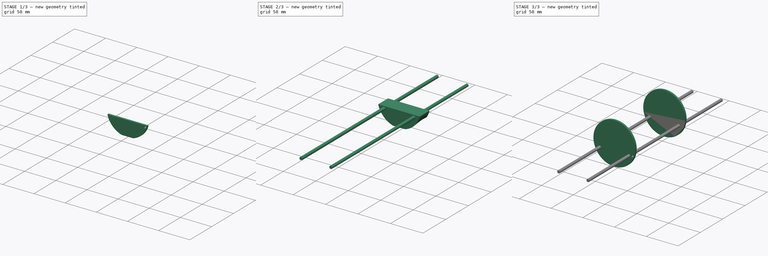
[diagram: build sequence overview — one tinted view per stage of 3, left to right]
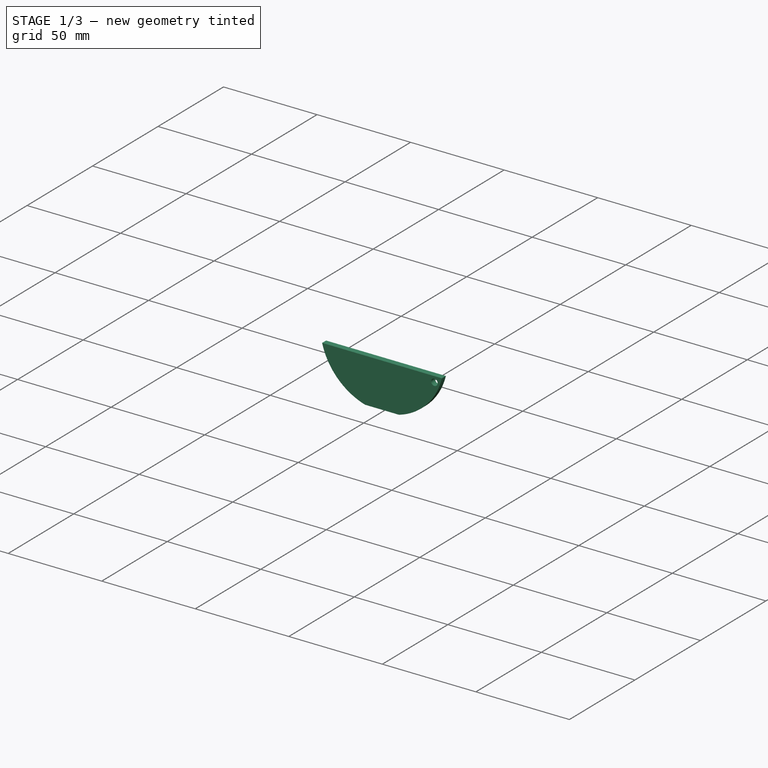
[diagram: stage 1 of 3 — iso view after this stage's code; geometry added in this stage tinted green]
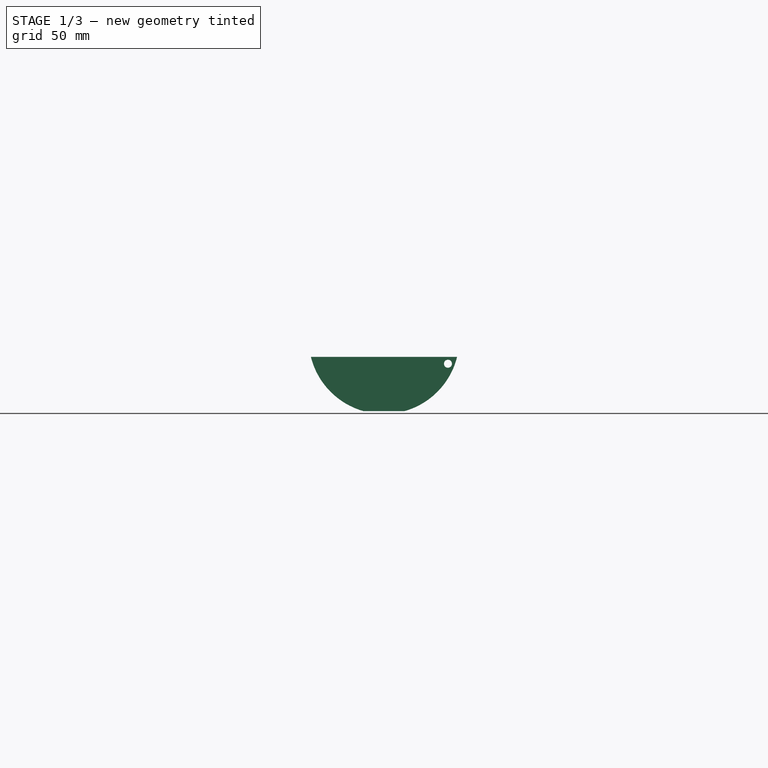
[diagram: stage 1 of 3 — front view after this stage's code; geometry added in this stage tinted green]
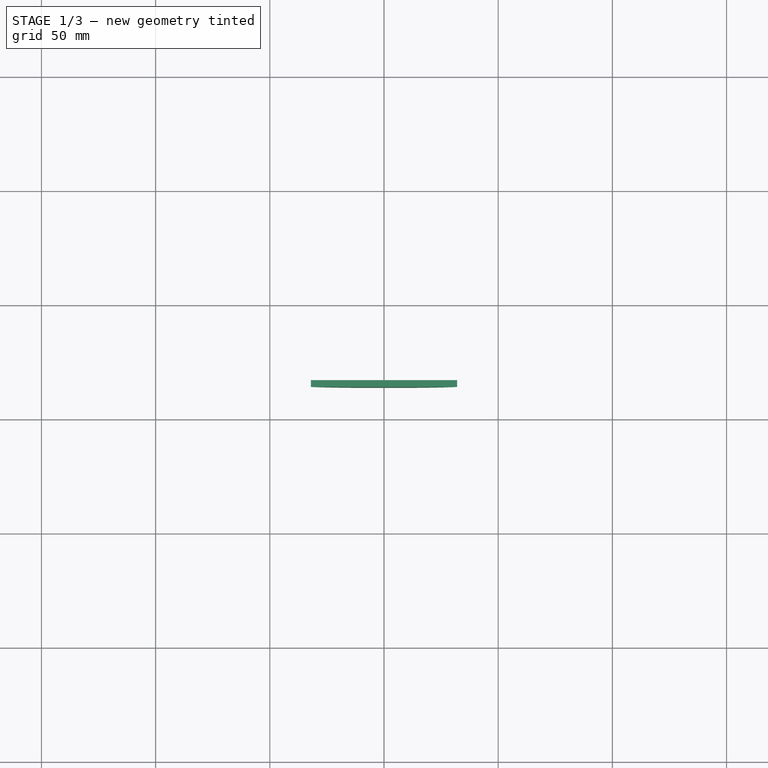
[diagram: stage 1 of 3 — top view after this stage's code; geometry added in this stage tinted green]
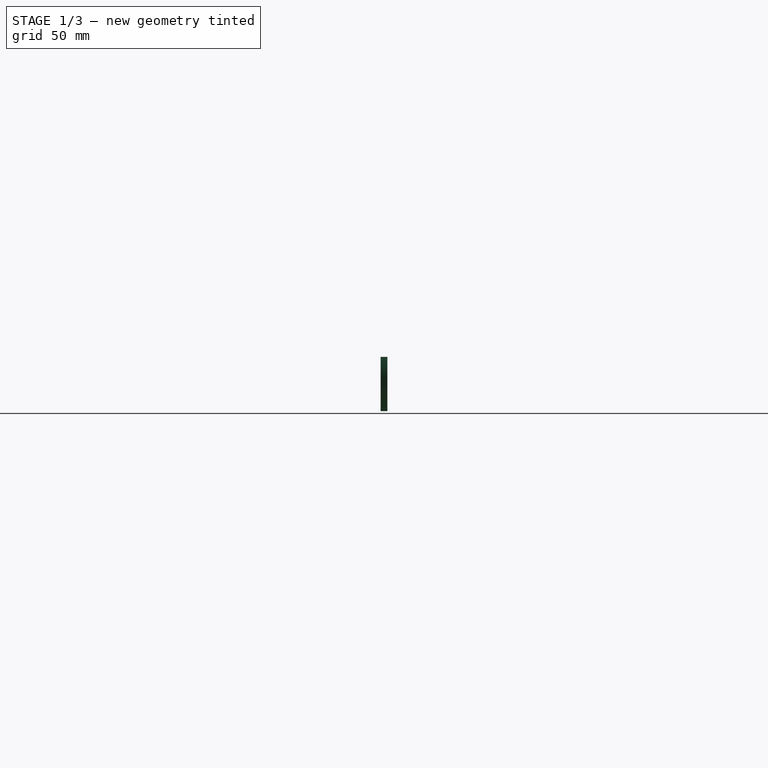
[diagram: stage 1 of 3 — right view after this stage's code; geometry added in this stage tinted green]
FCSTD DOCUMENT  (FreeCAD 0.19R24276 (Git))
Label: Corte_piezas3
License: Creative Commons Attribution-ShareAlike
LicenseURL: http://creativecommons.org/licenses/by-sa/4.0/
objects: Sketcher::SketchObject×8, Part::Extrusion×6, PartDesign::SubShapeBinder×4, App::Part×3, Spreadsheet::Sheet×1, Part::Loft×1
note: 19 computed .brp shape members not serialized (recipe doc carries the construction recipe); baked Part::Feature solids carry a one-line shape summary decoded from their .brp

FEATURE [Spreadsheet::Sheet] Spreadsheet  label="Datos"
  cells = A1=Diámetro pila; B1(DiametroPila)=18; A2=Tolerancia; B2(tolerancia)=0.4; A3=Largo Pila; B3(largoPila)=65; A4=Separacion; B4(separacion)=1; A5=Grosor tapa; B5(grosortapa)=3; A6=Largo Bote; B6(LargoBote)=115; A7= Rosca pasante Diámetro; B7(roscaPasante4)=4
FEATURE [Sketcher::SketchObject] Sketch  label="habitaculo_pila_antena"
  FullyConstrained = true
  MapMode = 5
  Placement = pos=(0,0,0) rot=(1,0,0;1.5708rad)
  Support = -> [XZ_Plane]
  expr: Constraints[15] = <<Datos>>.DiametroPila
  expr: Constraints[2] = <<Datos>>.DiametroPila + <<Datos>>.tolerancia
  sketch-geometry (10):
    g0: Circle CenterX=0 CenterY=0 CenterZ=0 NormalX=0 NormalY=0 NormalZ=1 AngleXU=0 Radius=33
    g1: LineSegment StartX=-9 StartY=-31.749 StartZ=0 EndX=9 EndY=-31.749 EndZ=0
    g2: LineSegment StartX=-32.0156 StartY=-8 StartZ=0 EndX=32.0156 EndY=-8 EndZ=0
    g3: ArcOfCircle CenterX=-9 CenterY=-20.249 CenterZ=0 NormalX=0 NormalY=0 NormalZ=1 AngleXU=0 Radius=9.2 StartAngle=0.208894 EndAngle=2.44113
    g4: ArcOfCircle CenterX=9 CenterY=-20.249 CenterZ=0 NormalX=0 NormalY=0 NormalZ=1 AngleXU=0 Radius=9.2 StartAngle=3.35049 EndAngle=9.21588
    g5: Circle CenterX=28 CenterY=-11 CenterZ=0 NormalX=0 NormalY=0 NormalZ=1 AngleXU=0 Radius=1.75
    g6: ArcOfCircle CenterX=0 CenterY=0 CenterZ=0 NormalX=0 NormalY=0 NormalZ=1 AngleXU=0 Radius=33 StartAngle=3.38646 EndAngle=4.43616
    g7: ArcOfCircle CenterX=0 CenterY=0 CenterZ=0 NormalX=0 NormalY=0 NormalZ=1 AngleXU=0 Radius=33 StartAngle=4.98862 EndAngle=6.03832
    g8: ArcOfCircle CenterX=-20.0156 CenterY=-14.7 CenterZ=0 NormalX=0 NormalY=0 NormalZ=1 AngleXU=0 Radius=4 StartAngle=0.0954034 EndAngle=5.25451
    g9: ArcOfCircle CenterX=-9 CenterY=-20.249 CenterZ=0 NormalX=0 NormalY=0 NormalZ=1 AngleXU=0 Radius=9.2 StartAngle=2.90878 EndAngle=6.07429
  constraints (31):
    c: Diameter(g0) = 66
    c: Horizontal(g1)
    c: Diameter(g3) = 18.4
    c: Equal(g3,g4)
    c: Coincident(g4,g9)
    c: Coincident(g4,g3)
    c: Coincident(g0,g-1)
    c: Diameter(g5) = 3.5
    c: Horizontal(g2)
    c: Vertical(g1,g4)
    c: Coincident(g6,g-1)
    c: Coincident(g6,g1)
    c: Coincident(g7,g6)
    c: Coincident(g7,g1)
    c: Symmetric(g4,g3,g-2)
    c: DistanceX(g3,g4) = 18
    c: PointOnObject(g1,g0)
    c: DistanceY(g1,g3) = 11.5
    c: DistanceY(g5,g2) = 3
    c: DistanceX(g6,g5) = 28
    c: DistanceY(g2,g6) = 8
    c: PointOnObject(g6,g0)
    c: Coincident(g2,g6)
    c: Coincident(g7,g2)
    c: DistanceX(g8,g2) = -12
    c: DistanceY(g8,g2) = 6.7
    c: Equal(g3,g9)
    c: Coincident(g3,g8)
    c: Coincident(g9,g8)
    c: Coincident(g3,g9)
    c: Radius(g8) = 4
FEATURE [Part::Extrusion] Extrude  label="Habitaculo_Pilas"
  Base = -> Sketch
  Dir = (0,-1,-2e-16)
  DirMode = 2
  FaceMakerClass = Part::FaceMakerBullseye
  LengthFwd = 66
  LengthRev = 0
  Solid = true
  Symmetric = true
  expr: LengthFwd = <<Datos>>.largoPila + <<Datos>>.separacion
FEATURE [PartDesign::SubShapeBinder] Binder  label="ParaLaTapaPilasSB"
  BindMode = 0
  ClaimChildren = false
  Context = -> Part [Binder.]
  Fuse = false
  MakeFace = true
  PartialLoad = false
  Relative = true
  Support = -> [Extrude[Face11]]
  _Version = 2
FEATURE [Sketcher::SketchObject] Sketch001  label="TapaPilasSK"
  ExternalGeometry = -> [Binder]
  FullyConstrained = true
  MapMode = 5
  Placement = pos=(-3e-16,-33,-1.19e-14) rot=(1,0,0;1.5708rad)
  Support = -> [Binder]
  sketch-geometry (5):
    g0: ArcOfCircle CenterX=5e-16 CenterY=3.1e-15 CenterZ=0 NormalX=0 NormalY=0 NormalZ=1 AngleXU=0 Radius=33 StartAngle=4.98862 EndAngle=6.03832
    g1: ArcOfCircle CenterX=5e-16 CenterY=3.1e-15 CenterZ=0 NormalX=0 NormalY=0 NormalZ=1 AngleXU=0 Radius=33 StartAngle=3.38646 EndAngle=4.43616
    g2: LineSegment StartX=-32.0156 StartY=-8 StartZ=0 EndX=32.0156 EndY=-8 EndZ=0
    g3: LineSegment StartX=9 StartY=-31.749 StartZ=0 EndX=-9 EndY=-31.749 EndZ=0
    g4: Circle CenterX=28 CenterY=-11 CenterZ=0 NormalX=0 NormalY=0 NormalZ=1 AngleXU=0 Radius=1.75
  constraints (11):
    c: Coincident(g0,g-3)
    c: Coincident(g0,g-3)
    c: Coincident(g1,g0)
    c: Coincident(g1,g-4)
    c: Coincident(g1,g-4)
    c: Coincident(g2,g1)
    c: Coincident(g2,g0)
    c: Coincident(g3,g0)
    c: Coincident(g3,g1)
    c: Coincident(g4,g-5)
    c: Equal(g-5,g4)
FEATURE [Part::Extrusion] Extrude002  label="TapaPilas"
  Base = -> Sketch001
  Dir = (0,-1,-2e-16)
  DirMode = 2
  FaceMakerClass = Part::FaceMakerBullseye
  LengthFwd = 3
  LengthRev = 0
  Solid = true
  Symmetric = false
  expr: LengthFwd = <<Datos>>.grosortapa
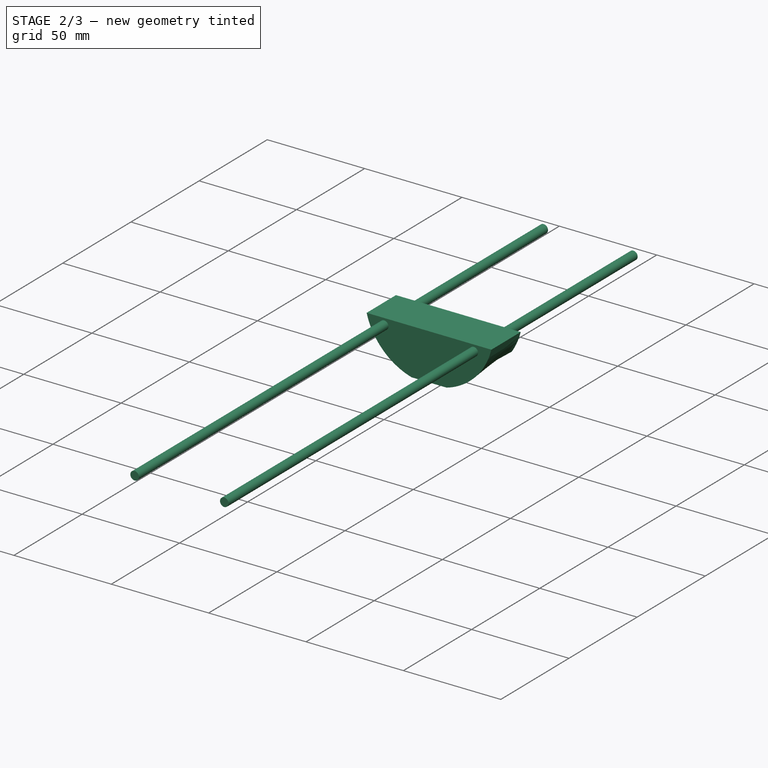
[diagram: stage 2 of 3 — iso view after this stage's code; geometry added in this stage tinted green]
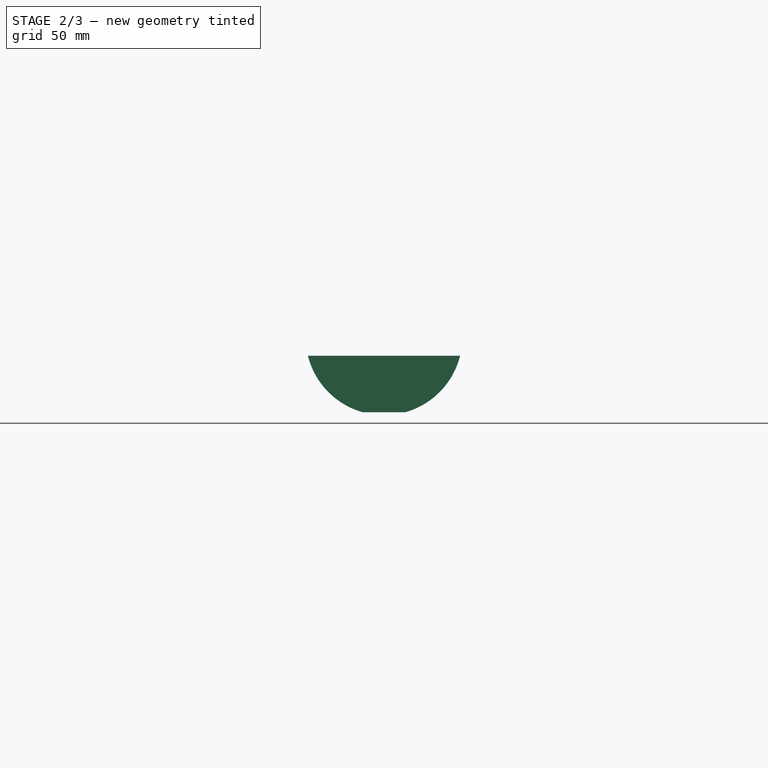
[diagram: stage 2 of 3 — front view after this stage's code; geometry added in this stage tinted green]
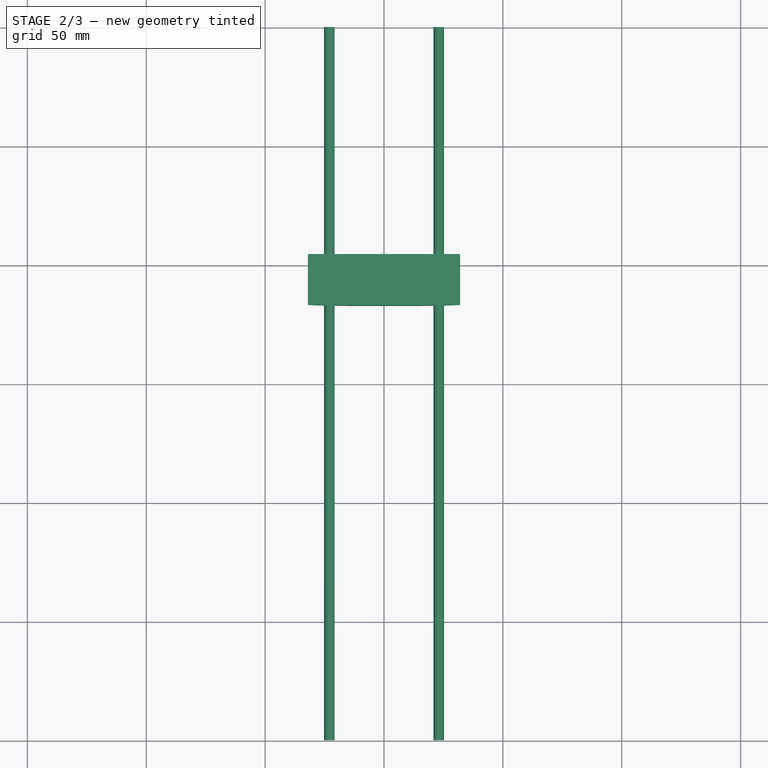
[diagram: stage 2 of 3 — top view after this stage's code; geometry added in this stage tinted green]
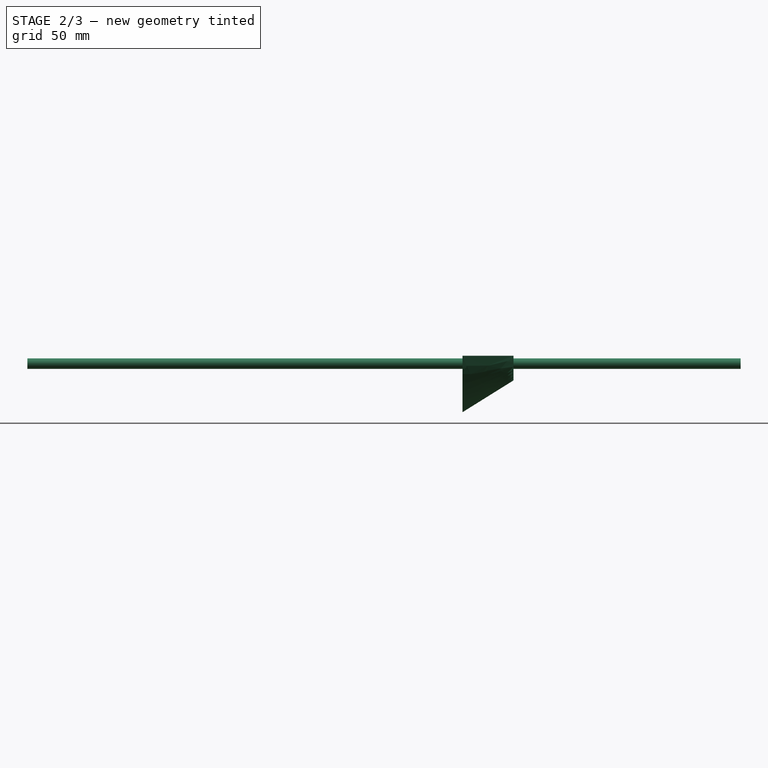
[diagram: stage 2 of 3 — right view after this stage's code; geometry added in this stage tinted green]
FEATURE [App::Part] Part  label="Pilas"
  Group = -> [Sketch,Extrude,Binder,Sketch001,Extrude002]
  Origin = -> Origin
FEATURE [PartDesign::SubShapeBinder] Binder001  label="LateralA_SB"
  BindMode = 0
  ClaimChildren = false
  Context = -> Part001 [Binder001.]
  Fuse = false
  MakeFace = true
  PartialLoad = false
  Relative = true
  Support = -> [Part[Extrude002.Face7]]
  _Version = 2
FEATURE [Sketcher::SketchObject] Sketch002  label="LateralA_SK"
  ExternalGeometry = -> [Binder001]
  FullyConstrained = true
  MapMode = 5
  Placement = pos=(-1e-16,-36,-1.21e-14) rot=(1,0,0;1.5708rad)
  Support = -> [Binder001]
  sketch-geometry (5):
    g0: LineSegment StartX=-32.0156 StartY=-8 StartZ=0 EndX=32.0156 EndY=-8 EndZ=0
    g1: LineSegment StartX=-29.3939 StartY=-15 StartZ=0 EndX=29.3939 EndY=-15 EndZ=0
    g2: ArcOfCircle CenterX=0 CenterY=0 CenterZ=0 NormalX=0 NormalY=0 NormalZ=1 AngleXU=0 Radius=33 StartAngle=5.81132 EndAngle=6.03832
    g3: ArcOfCircle CenterX=0 CenterY=0 CenterZ=0 NormalX=0 NormalY=0 NormalZ=1 AngleXU=0 Radius=33 StartAngle=3.38646 EndAngle=3.61345
    g4: Circle CenterX=28 CenterY=-11 CenterZ=0 NormalX=0 NormalY=0 NormalZ=1 AngleXU=0 Radius=1.75
  constraints (12):
    c: Coincident(g0,g-3)
    c: Coincident(g0,g-4)
    c: Horizontal(g1)
    c: Coincident(g2,g-1)
    c: Coincident(g2,g0)
    c: Coincident(g3,g2)
    c: Coincident(g3,g0)
    c: Coincident(g1,g3)
    c: Coincident(g1,g2)
    c: Coincident(g4,g-5)
    c: Equal(g4,g-5)
    c: DistanceY(g1,g0) = 7
FEATURE [Part::Extrusion] Extrude004  label="Pieza_LateralA"
  Base = -> Sketch002
  Dir = (0,-1,-2e-16)
  DirMode = 2
  FaceMakerClass = Part::FaceMakerBullseye
  LengthFwd = 18.5
  LengthRev = 0
  Solid = true
  Symmetric = false
  expr: LengthFwd = <<Datos>>.LargoBote / 2 - 2 * <<Datos>>.grosortapa - (<<Datos>>.largoPila + <<Datos>>.separacion) / 2
FEATURE [Sketcher::SketchObject] Sketch004  label="Agujeros_pasantes"
  ExternalGeometry = -> [Extrude004]
  FullyConstrained = true
  MapMode = 3
  Placement = pos=(4e-16,0,1.41e-14) rot=(1,0,0;1.5708rad)
  expr: Constraints[0] = <<Datos>>.roscaPasante4 + <<Datos>>.tolerancia
  sketch-geometry (2):
    g0: Circle CenterX=-23.0156 CenterY=-11.3 CenterZ=0 NormalX=0 NormalY=0 NormalZ=1 AngleXU=0 Radius=2.2
    g1: Circle CenterX=23.0156 CenterY=-11.3 CenterZ=0 NormalX=0 NormalY=0 NormalZ=1 AngleXU=0 Radius=2.2
  constraints (5):
    c: Diameter(g0) = 4.4
    c: Diameter(g1) = 4.4
    c: Symmetric(g1,g0,g-2)
    c: DistanceX(g0,g-3) = -9
    c: DistanceY(g0,g-3) = 3.3
FEATURE [App::Part] Part001  label="LateralA"
  Group = -> [Sketch003,Extrude005,Binder002,Binder001,Sketch002,Extrude004,Sketch004]
  Origin = -> Origin001
FEATURE [PartDesign::SubShapeBinder] Binder003
  BindMode = 0
  ClaimChildren = false
  Fuse = false
  MakeFace = true
  PartialLoad = false
  Relative = true
  Support = -> [Part[Extrude.Face10]]
  _Version = 2
FEATURE [Sketcher::SketchObject] Sketch005  label="LateralB1"
  ExternalGeometry = -> [Binder003]
  FullyConstrained = true
  MapMode = 5
  Placement = pos=(3e-16,33,1.19e-14) rot=(0,0.707107,0.707107;3.14159rad)
  Support = -> [Binder003]
  sketch-geometry (4):
    g0: ArcOfCircle CenterX=2.4e-15 CenterY=-8.9e-15 CenterZ=0 NormalX=0 NormalY=0 NormalZ=1 AngleXU=0 Radius=33 StartAngle=4.98862 EndAngle=6.03832
    g1: ArcOfCircle CenterX=2.4e-15 CenterY=-8.9e-15 CenterZ=0 NormalX=0 NormalY=0 NormalZ=1 AngleXU=0 Radius=33 StartAngle=3.38646 EndAngle=4.43616
    g2: LineSegment StartX=-32.0156 StartY=-8 StartZ=0 EndX=32.0156 EndY=-8 EndZ=0
    g3: LineSegment StartX=9 StartY=-31.749 StartZ=0 EndX=-9 EndY=-31.749 EndZ=0
  constraints (9):
    c: Coincident(g0,g-3)
    c: Coincident(g0,g-3)
    c: Coincident(g1,g0)
    c: Coincident(g1,g-4)
    c: Coincident(g1,g-4)
    c: Coincident(g2,g1)
    c: Coincident(g2,g0)
    c: Coincident(g3,g0)
    c: Coincident(g3,g1)
FEATURE [Sketcher::SketchObject] Sketch006  label="LateralB1_2"
  ExternalGeometry = -> [Binder003]
  FullyConstrained = true
  MapMode = 3
  Placement = pos=(3e-16,54.5,1.19e-14) rot=(0,0.707107,0.707107;3.14159rad)
  sketch-geometry (4):
    g0: LineSegment StartX=-32.0156 StartY=-8 StartZ=0 EndX=32.0156 EndY=-8 EndZ=0
    g1: ArcOfCircle CenterX=0 CenterY=0 CenterZ=0 NormalX=0 NormalY=0 NormalZ=1 AngleXU=0 Radius=33 StartAngle=3.38646 EndAngle=3.73091
    g2: ArcOfCircle CenterX=0 CenterY=0 CenterZ=0 NormalX=0 NormalY=0 NormalZ=1 AngleXU=0 Radius=33 StartAngle=5.69387 EndAngle=6.03832
    g3: LineSegment StartX=-27.4336 StartY=-18.3411 StartZ=0 EndX=27.4336 EndY=-18.3411 EndZ=0
  constraints (10):
    c: Coincident(g0,g-3)
    c: Coincident(g0,g-3)
    c: Coincident(g1,g-1)
    c: Coincident(g1,g0)
    c: Coincident(g2,g1)
    c: Coincident(g2,g0)
    c: Coincident(g3,g1)
    c: Coincident(g3,g2)
    c: Horizontal(g3)
    c: PointOnObject(g-4,g3)
FEATURE [Part::Loft] Loft
  Closed = false
  MaxDegree = 5
  Ruled = false
  Sections = -> [Sketch005,Sketch006]
  Solid = true
FEATURE [App::Part] Part002  label="LateralB"
  Group = -> [Binder003,Sketch005,Sketch006,Loft,Sketch007,Extrude006]
  Origin = -> Origin002
FEATURE [Part::Extrusion] Extrude007  label="Taladros"
  Base = -> Sketch004
  Dir = (0,-1,2e-16)
  DirMode = 2
  FaceMakerClass = Part::FaceMakerBullseye
  LengthFwd = 300
  LengthRev = 0
  Solid = true
  Symmetric = true
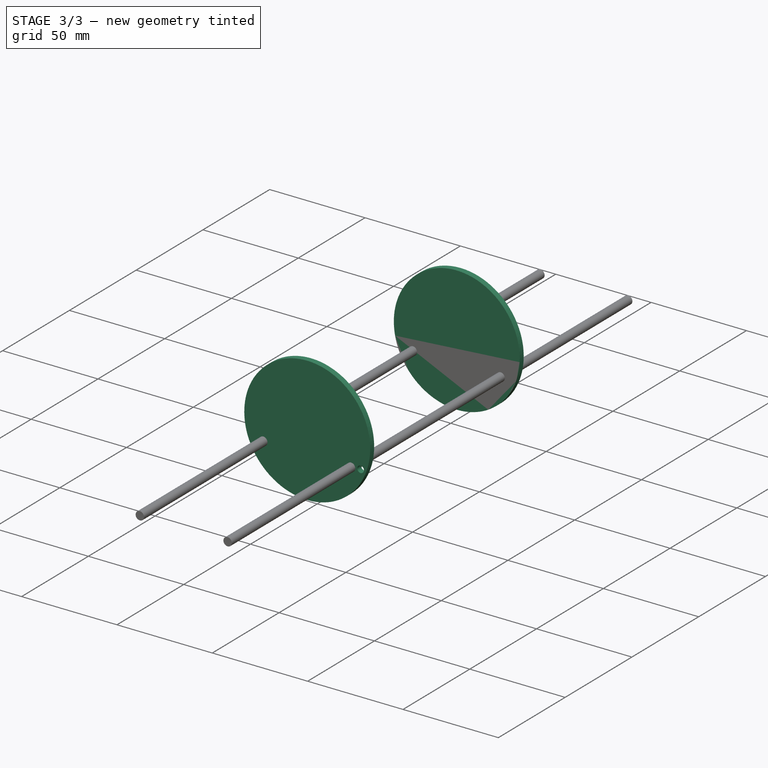
[diagram: stage 3 of 3 — iso view after this stage's code; geometry added in this stage tinted green]
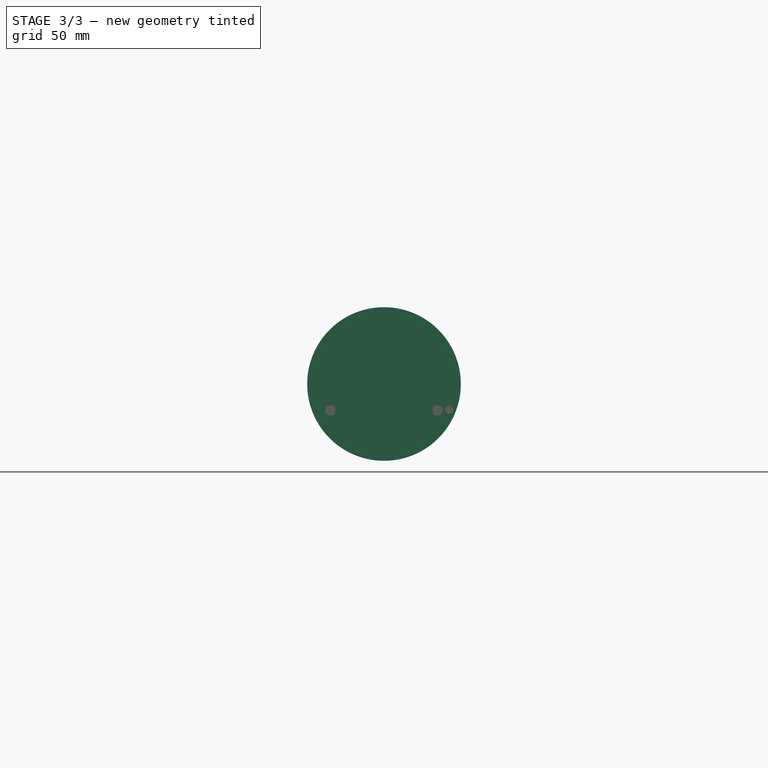
[diagram: stage 3 of 3 — front view after this stage's code; geometry added in this stage tinted green]
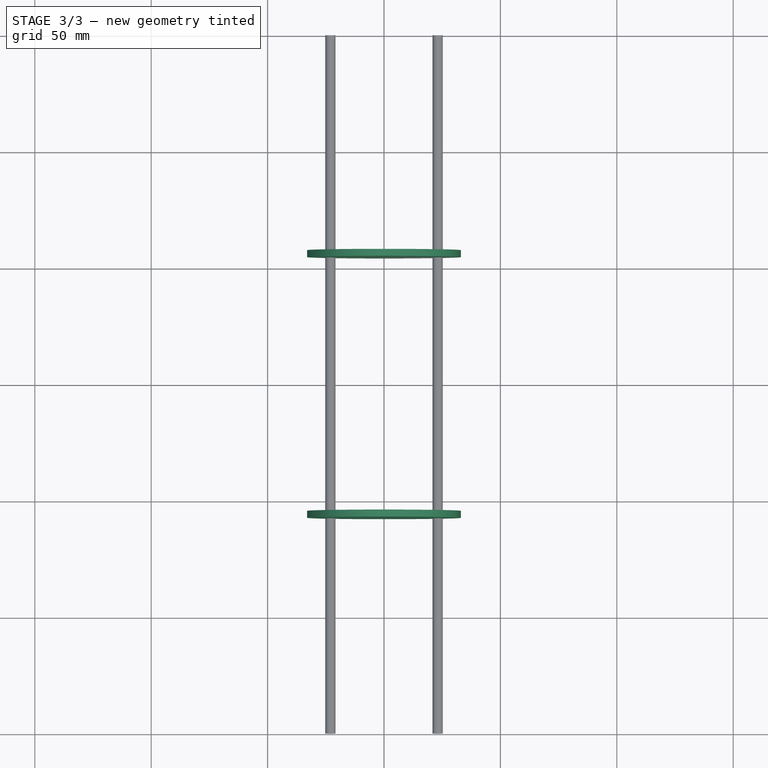
[diagram: stage 3 of 3 — top view after this stage's code; geometry added in this stage tinted green]
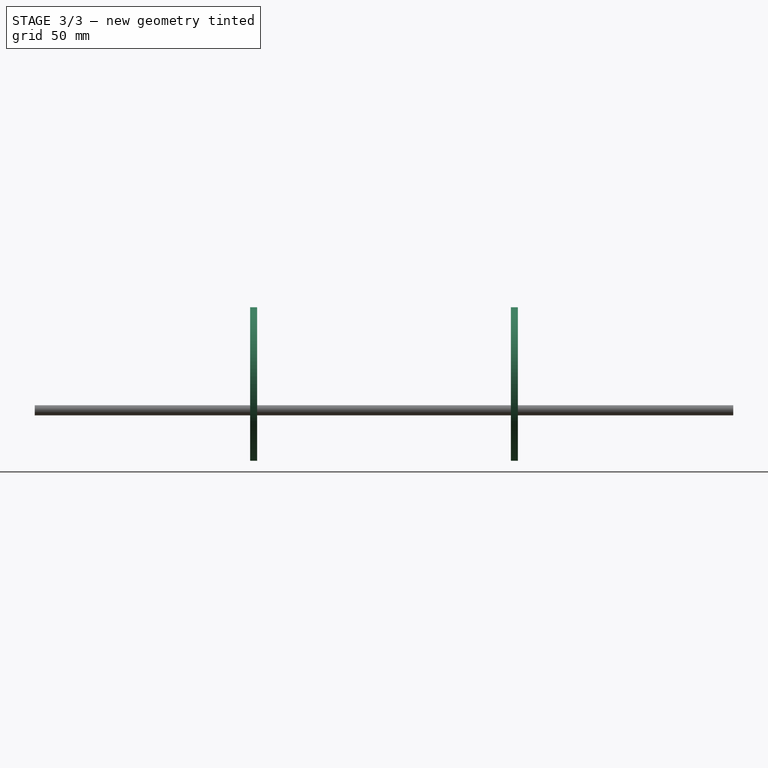
[diagram: stage 3 of 3 — right view after this stage's code; geometry added in this stage tinted green]
FEATURE [PartDesign::SubShapeBinder] Binder002  label="TapaLateralASB"
  BindMode = 0
  ClaimChildren = false
  Context = -> Part001 [Binder002.]
  Fuse = false
  MakeFace = true
  PartialLoad = false
  Relative = true
  Support = -> [Extrude004[Face7]]
  _Version = 2
FEATURE [Sketcher::SketchObject] Sketch003  label="TapaLateralASK"
  ExternalGeometry = -> [Binder002,Extrude004]
  FullyConstrained = true
  MapMode = 5
  Placement = pos=(0,-54.5,0) rot=(1,0,0;1.5708rad)
  Support = -> [Binder002]
  sketch-geometry (2):
    g0: Circle CenterX=0 CenterY=0 CenterZ=0 NormalX=0 NormalY=0 NormalZ=1 AngleXU=0 Radius=33
    g1: Circle CenterX=28 CenterY=-11 CenterZ=0 NormalX=0 NormalY=0 NormalZ=1 AngleXU=0 Radius=1.75
  constraints (4):
    c: Coincident(g0,g-1)
    c: PointOnObject(g-3,g0)
    c: Coincident(g1,g-4)
    c: Equal(g-4,g1)
FEATURE [Part::Extrusion] Extrude005  label="TapaLateralA"
  Base = -> Sketch003
  Dir = (0,-1,2e-16)
  DirMode = 2
  FaceMakerClass = Part::FaceMakerBullseye
  LengthFwd = 3
  LengthRev = 0
  Solid = true
  Symmetric = false
  expr: LengthFwd = <<Datos>>.grosortapa
FEATURE [Sketcher::SketchObject] Sketch007  label="TapaLateralB_SK"
  ExternalGeometry = -> [Loft]
  FullyConstrained = true
  MapMode = 5
  Placement = pos=(5e-15,54.5,-1.21e-14) rot=(0,0.707107,0.707107;3.14159rad)
  Support = -> [Loft]
  sketch-geometry (1):
    g0: Circle CenterX=0 CenterY=0 CenterZ=0 NormalX=0 NormalY=0 NormalZ=1 AngleXU=0 Radius=33
  constraints (2):
    c: Coincident(g0,g-1)
    c: PointOnObject(g-3,g0)
FEATURE [Part::Extrusion] Extrude006  label="TapaLateralB"
  Base = -> Sketch007
  Dir = (1e-16,1,-2e-16)
  DirMode = 2
  FaceMakerClass = Part::FaceMakerBullseye
  LengthFwd = 3
  LengthRev = 0
  Solid = true
  Symmetric = false
  expr: LengthFwd = <<Datos>>.grosortapa
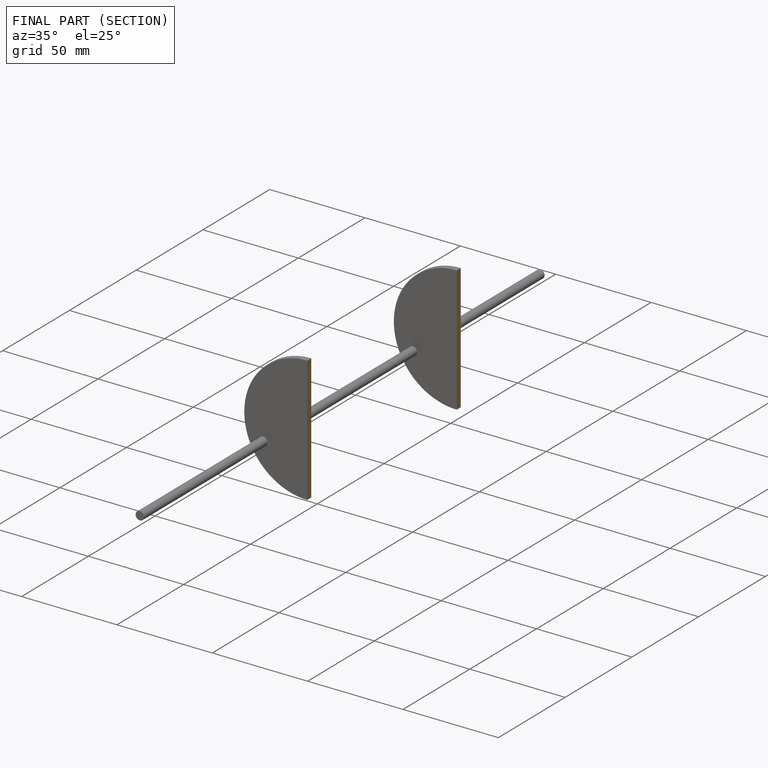
[diagram: finished part — half-section view (interior)]
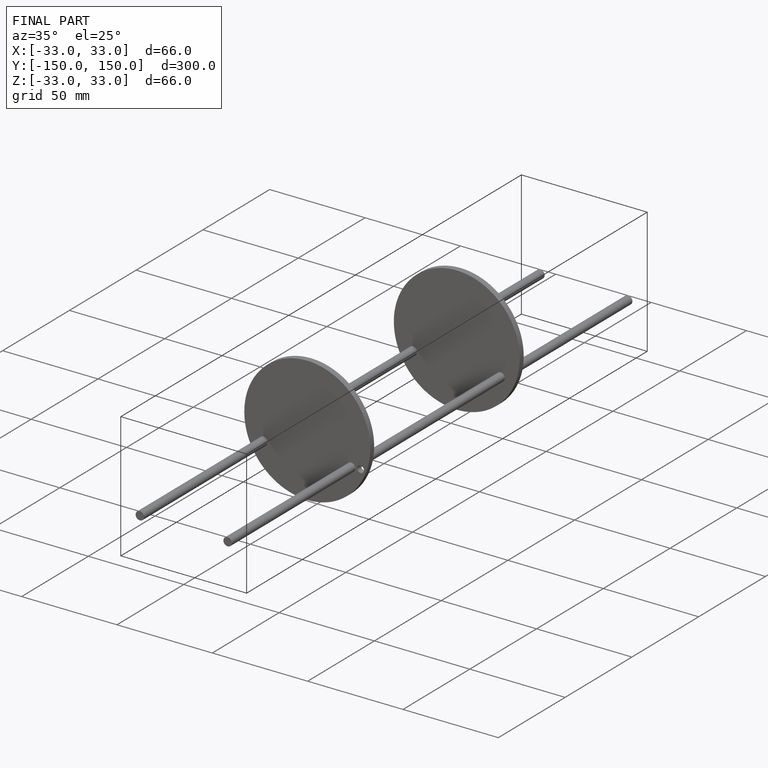
[diagram: finished part — iso view with bounding-box wireframe]
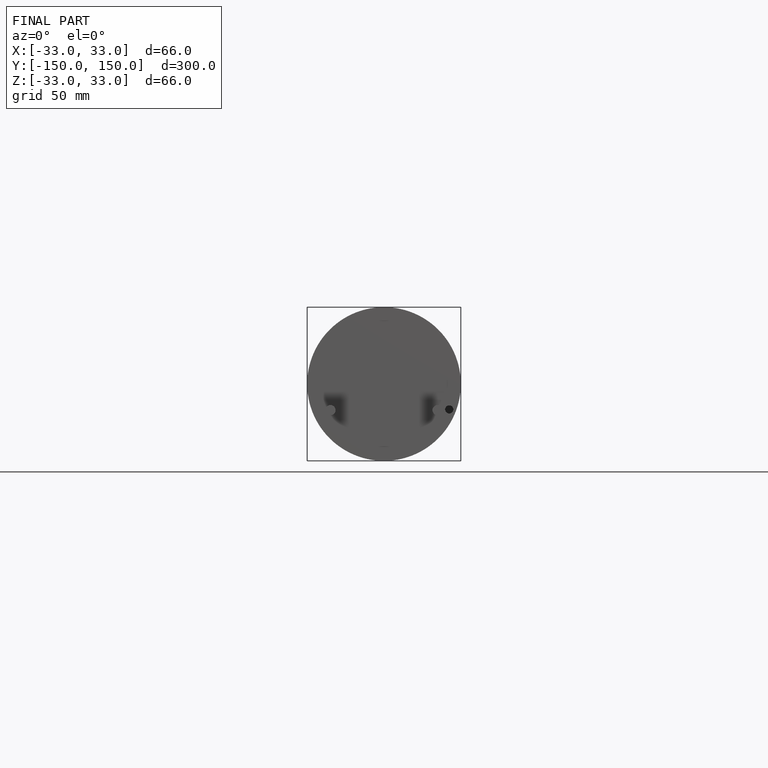
[diagram: finished part — front view with bounding-box wireframe]
